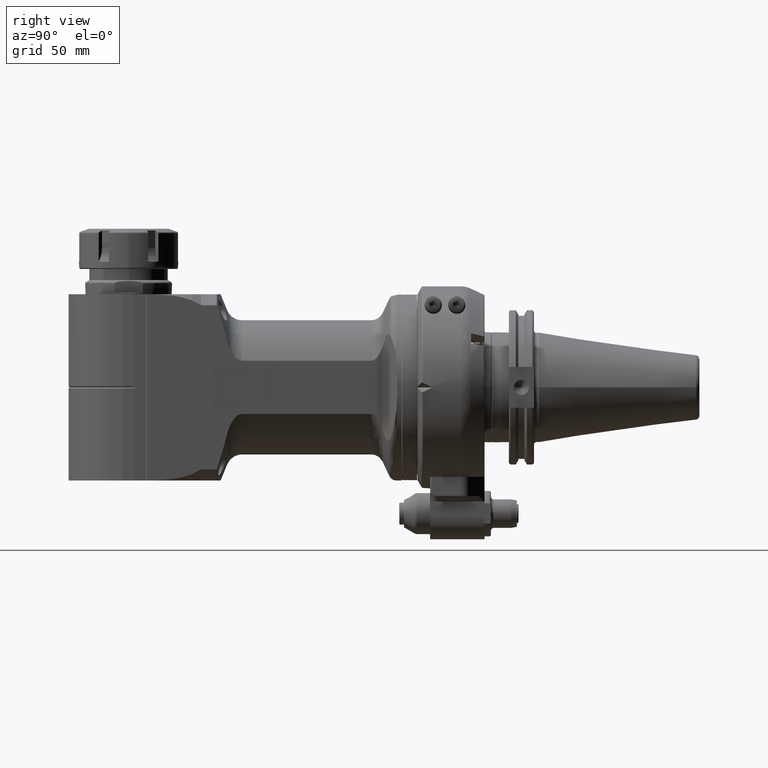
[diagram: clean part render]
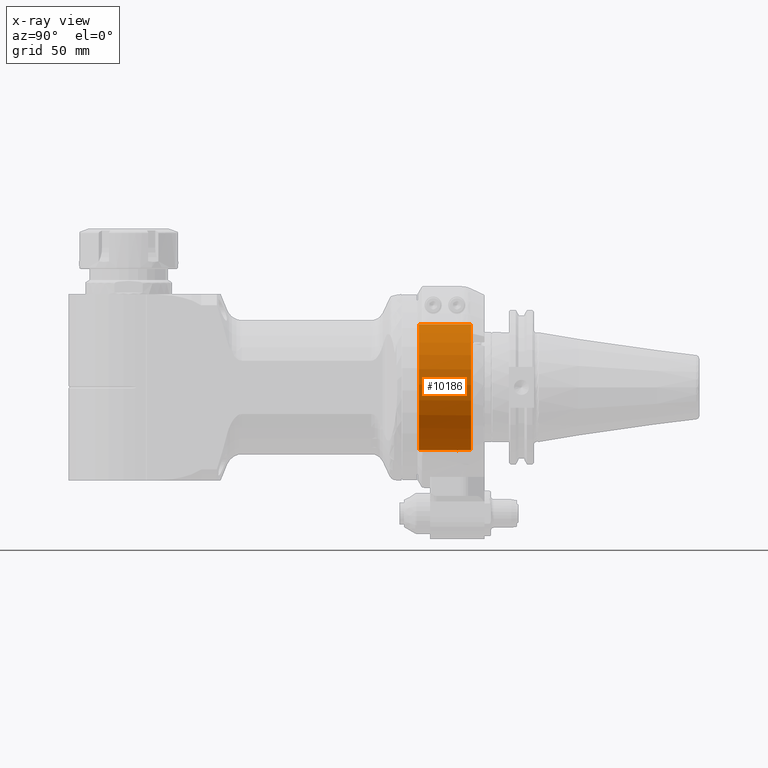
[diagram: x-ray — body ghosted, one internal face saturated and labeled with its STEP entity id]
A machine part, right view, then the same camera in x-ray: the body is ghosted and one INTERNAL B-rep face — a face not visible from any outside direction — is saturated and labeled: STEP entity #10186.
In plain terms, the highlighted cylindrical surface (partial cylindrical patch) has radius 40 mm, axis along (-0, -1, 0).
Its self-contained STEP definition (entity closure, byte-faithful):
#418=CYLINDRICAL_SURFACE('',#10888,40.);
#727=CIRCLE('',#10878,40.);
#732=CIRCLE('',#10889,40.);
#733=CIRCLE('',#10890,40.);
#734=CIRCLE('',#10891,40.);
#1253=FACE_OUTER_BOUND('',#1879,.T.);
#1879=EDGE_LOOP('',(#6884,#6885,#6886,#6887,#6888,#6889,#6890,#6891));
#2747=LINE('',#15274,#3431);
#2755=LINE('',#15366,#3439);
#2768=LINE('',#15558,#3452);
#2772=LINE('',#15568,#3456);
#3431=VECTOR('',#12070,32.99999976923);
#3439=VECTOR('',#12100,32.99999976923);
#3452=VECTOR('',#12159,8.499999538462);
#3456=VECTOR('',#12169,8.499999538462);
#4138=VERTEX_POINT('',#15271);
#4139=VERTEX_POINT('',#15273);
#4153=VERTEX_POINT('',#15363);
#4154=VERTEX_POINT('',#15365);
#4173=VERTEX_POINT('',#15493);
#4183=VERTEX_POINT('',#15557);
#4185=VERTEX_POINT('',#15565);
#4186=VERTEX_POINT('',#15567);
#5193=EDGE_CURVE('',#4139,#4138,#2747,.T.);
#5214=EDGE_CURVE('',#4154,#4153,#2755,.T.);
#5239=EDGE_CURVE('',#4154,#4173,#727,.T.);
#5254=EDGE_CURVE('',#4183,#4173,#2768,.T.);
#5258=EDGE_CURVE('',#4139,#4153,#732,.T.);
#5259=EDGE_CURVE('',#4185,#4138,#733,.T.);
#5260=EDGE_CURVE('',#4185,#4186,#2772,.T.);
#5261=EDGE_CURVE('',#4183,#4186,#734,.T.);
#6884=ORIENTED_EDGE('',*,*,#5258,.F.);
#6885=ORIENTED_EDGE('',*,*,#5193,.T.);
#6886=ORIENTED_EDGE('',*,*,#5259,.F.);
#6887=ORIENTED_EDGE('',*,*,#5260,.T.);
#6888=ORIENTED_EDGE('',*,*,#5261,.F.);
#6889=ORIENTED_EDGE('',*,*,#5254,.T.);
#6890=ORIENTED_EDGE('',*,*,#5239,.F.);
#6891=ORIENTED_EDGE('',*,*,#5214,.T.);
#10186=ADVANCED_FACE('',(#1253),#418,.F.);
#10878=AXIS2_PLACEMENT_3D('',#15494,#12133,#12134);
#10888=AXIS2_PLACEMENT_3D('',#15563,#12163,#12164);
#10889=AXIS2_PLACEMENT_3D('',#15564,#12165,#12166);
#10890=AXIS2_PLACEMENT_3D('',#15566,#12167,#12168);
#10891=AXIS2_PLACEMENT_3D('',#15569,#12170,#12171);
#12070=DIRECTION('',(0.,1.,0.));
#12100=DIRECTION('',(0.,-1.,0.));
#12133=DIRECTION('center_axis',(0.,-1.,0.));
#12134=DIRECTION('ref_axis',(-0.0374999961538496,0.,0.999296627777989));
#12159=DIRECTION('',(0.,1.,0.));
#12163=DIRECTION('center_axis',(0.,-1.,0.));
#12164=DIRECTION('ref_axis',(-1.22464679914735E-16,0.,-1.));
#12165=DIRECTION('center_axis',(0.,1.,0.));
#12166=DIRECTION('ref_axis',(0.,0.,-1.));
#12167=DIRECTION('center_axis',(0.,-1.,0.));
#12168=DIRECTION('ref_axis',(0.112499999999996,0.,-0.993651724700361));
#12169=DIRECTION('',(0.,-1.,0.));
#12170=DIRECTION('center_axis',(0.,-1.,0.));
#12171=DIRECTION('ref_axis',(0.,0.,-1.));
#15271=CARTESIAN_POINT('',(1.499999846154,33.99999976923,39.97186511112));
#15273=CARTESIAN_POINT('',(1.499999846154,0.999999999999999,39.97186511112));
#15274=CARTESIAN_POINT('',(1.499999846154,0.999999999999999,39.97186511112));
#15363=CARTESIAN_POINT('',(-1.499999846154,0.999999999999999,39.97186511112));
#15365=CARTESIAN_POINT('',(-1.499999846154,33.99999976923,39.97186511112));
#15366=CARTESIAN_POINT('',(-1.499999846154,33.99999976923,39.97186511112));
#15493=CARTESIAN_POINT('',(-4.5,33.99999976923,-39.74606898801));
#15494=CARTESIAN_POINT('Origin',(0.,33.99999976923,0.));
#15557=CARTESIAN_POINT('',(-4.5,25.50000023077,-39.74606898801));
#15558=CARTESIAN_POINT('',(-4.5,25.50000023077,-39.74606898801));
#15563=CARTESIAN_POINT('Origin',(0.,21.07692284615,0.));
#15564=CARTESIAN_POINT('Origin',(0.,0.999999999999999,0.));
#15565=CARTESIAN_POINT('',(4.5,33.99999976923,-39.74606898801));
#15566=CARTESIAN_POINT('Origin',(0.,33.99999976923,0.));
#15567=CARTESIAN_POINT('',(4.5,25.50000023077,-39.74606898801));
#15568=CARTESIAN_POINT('',(4.5,33.99999976923,-39.74606898801));
#15569=CARTESIAN_POINT('Origin',(0.,25.50000023077,0.));